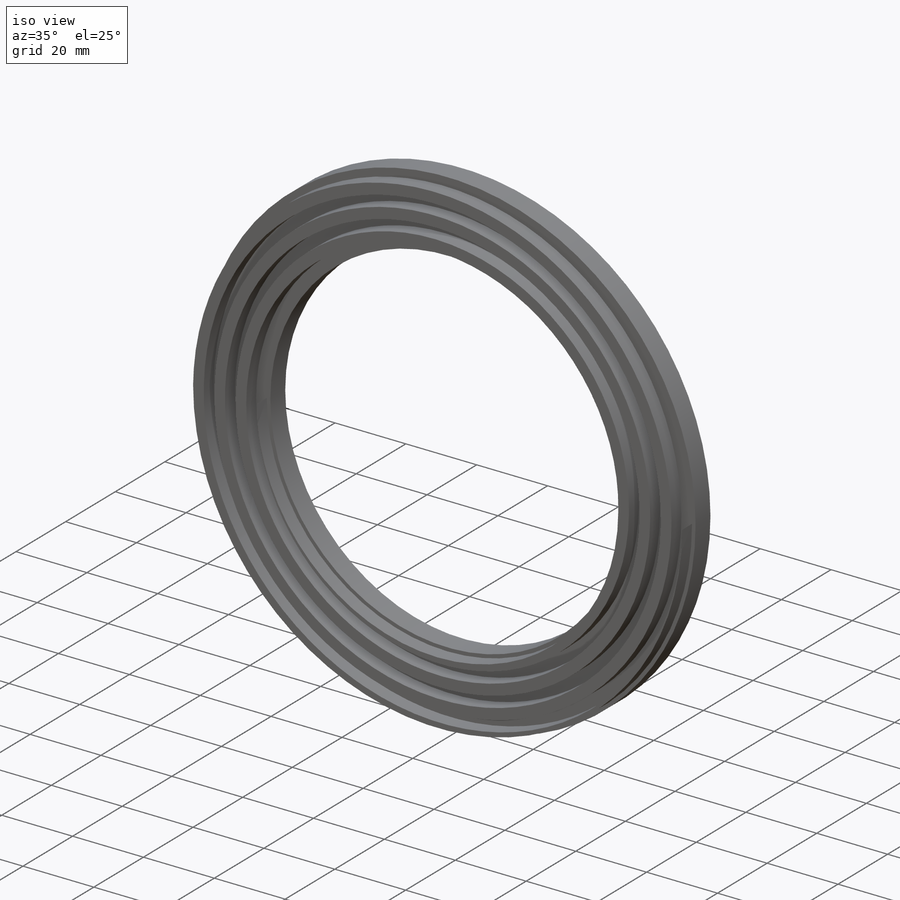
[diagram: iso view]
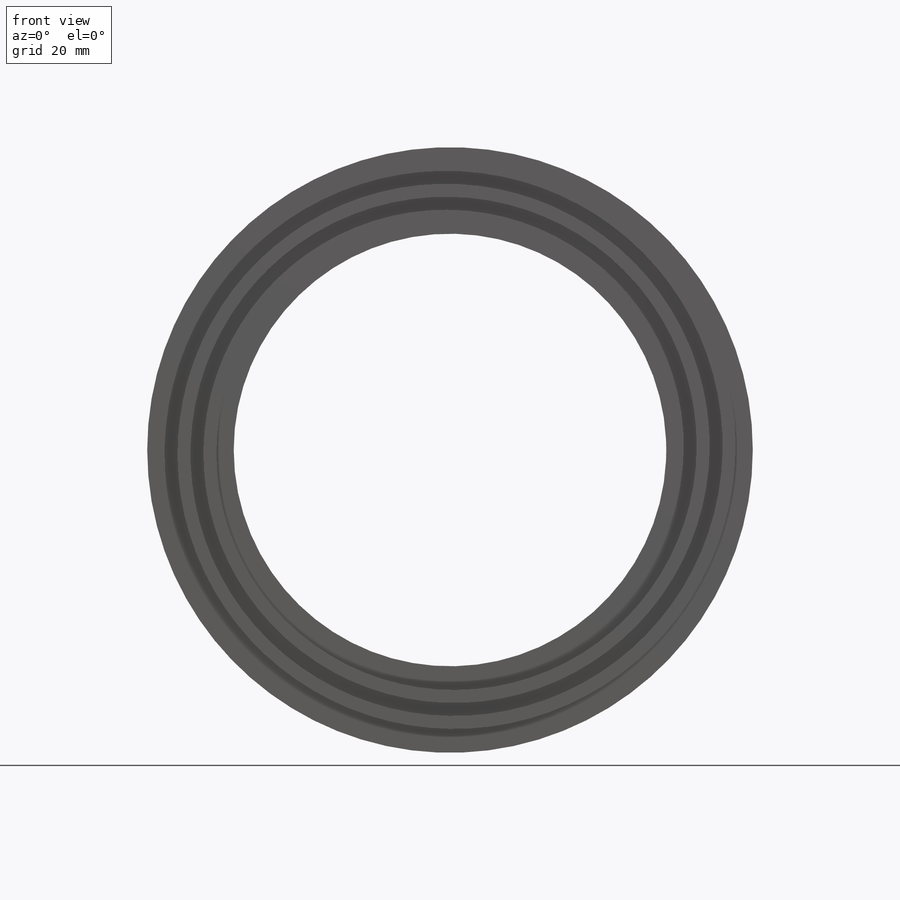
[diagram: front view]
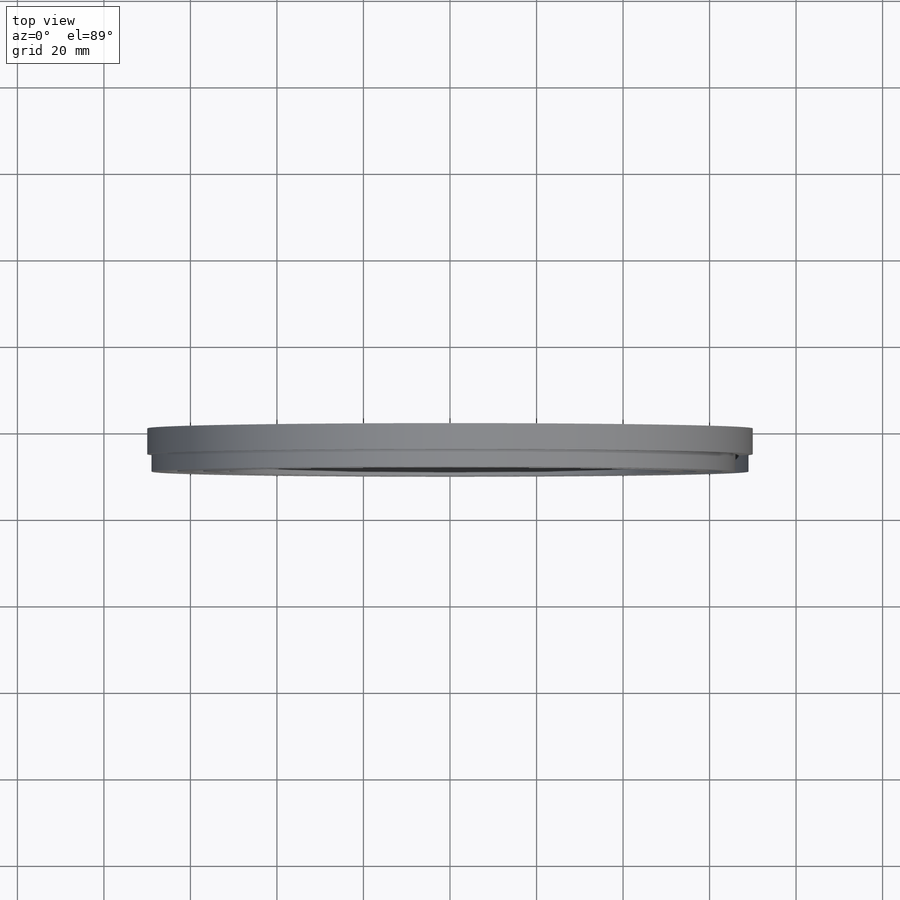
[diagram: top view]
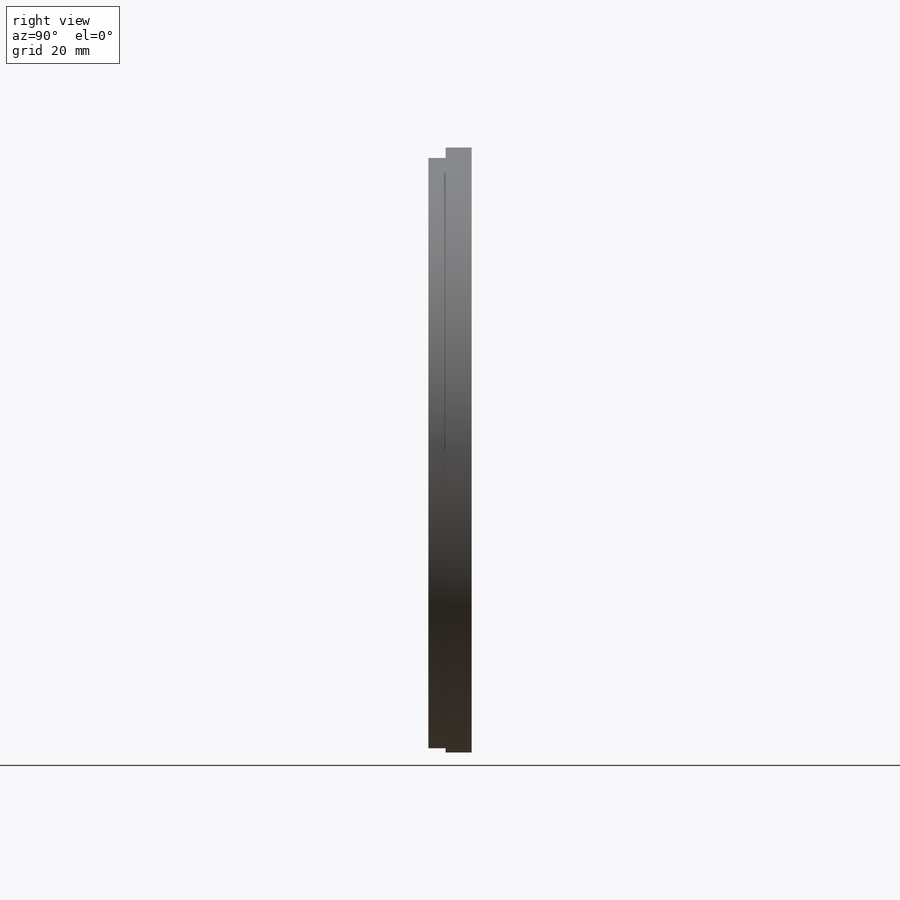
[diagram: right view]
SOLIDWORKS PART (.sldprt)
format: sldprt  version: not decoded by parser v0  size: 322,048 bytes
history: native  units: mm
features: sketch x4, plane x3, material x1, extrude x1, helix x1, sweep x1, cut_extrude x1 (+11 scaffold rows collapsed)
feature tree (23):
  scaffold x11  (default folders/planes/origin — collapsed)
  material  "Materiál <není určen>"
  plane  "Přední rovina"
  plane  "Horní rovina"
  plane  "Pravá rovina"
  sketch  "Skica1"  dims[D2=100.0mm D1=20.0mm]
  extrude  "Přidat vysunutím1"  Depth=10mm
  sketch  "Skica2"  dims[D1=3.0mm]
  helix  "Šroubovice/spirála1"  Pitch=6mm
  sketch  "Skica6"  dims[D1=30.0mm D2=3.0mm D3=4.0mm]
  sweep  "Odebrat tažením po křivce1"
  sketch  "Skica7"  dims[D1=102.0mm D2=138.0mm D3=5.0mm D4=5.0mm]
  cut_extrude  "Odebrat vysunutím3"  [1 undecoded]
decode coverage: 6 of 8 modeling features carry decoded parameters
note: 1 parameter value undecoded
note: suppression state not decoded; provenance and decode notes live in map.json
